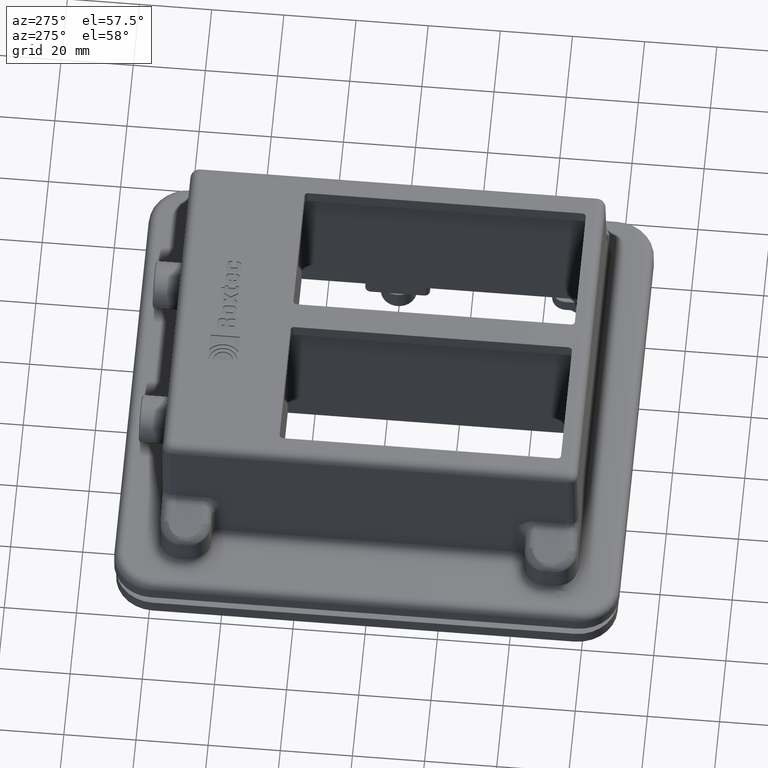
[diagram: clean part render]
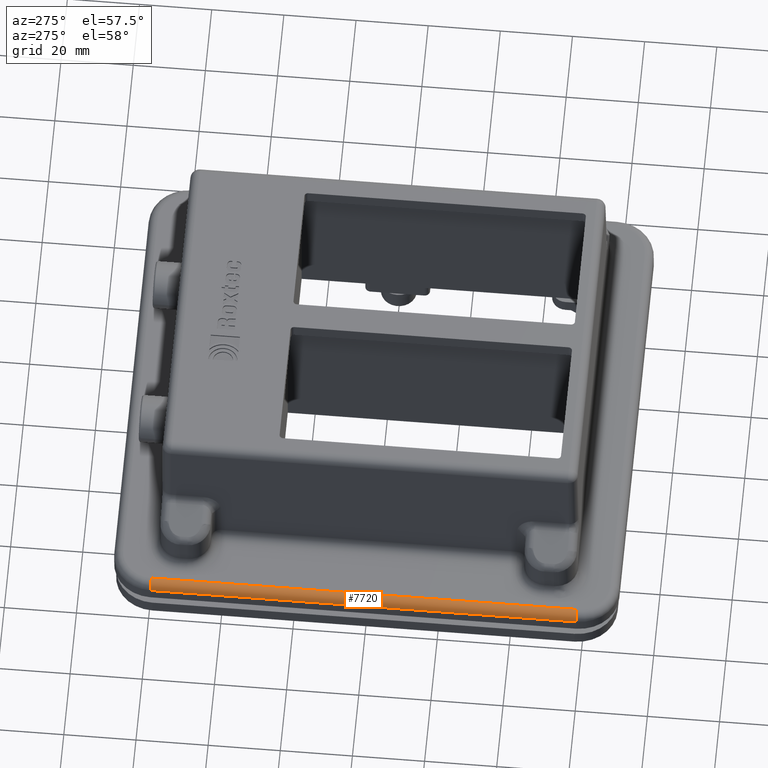
[diagram: same view with one face highlighted and labeled with its STEP entity id]
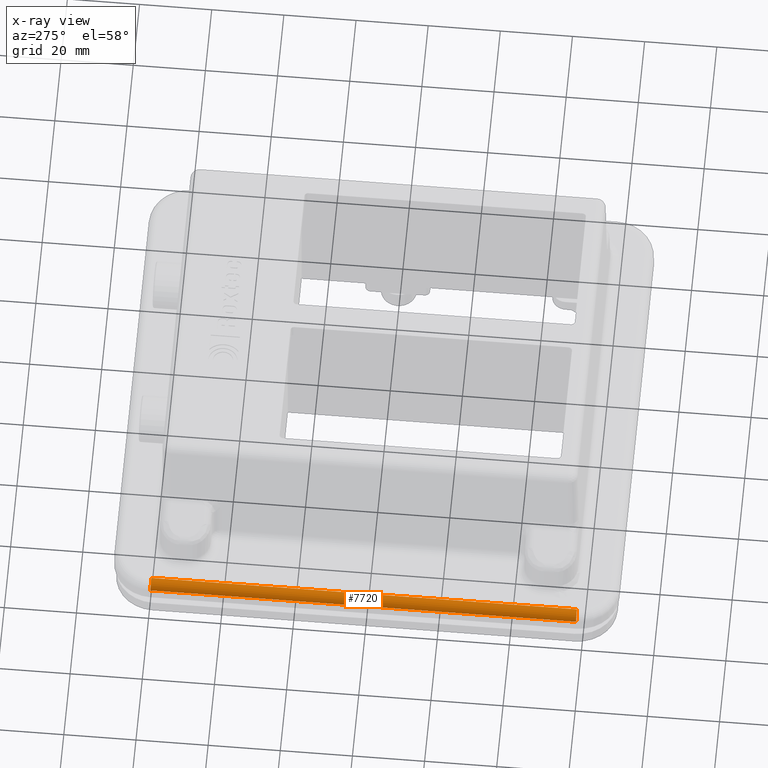
[diagram: x-ray of the same camera — body ghosted, the highlighted face saturated]
A machine part, auxiliary view. The second image highlights one B-rep face of the part: STEP entity #7720.
The next image is the same camera in x-ray: the body ghosted, the highlighted face saturated — about 0% of this face is hidden behind the body in this view.
In plain terms, the highlighted cylindrical surface (edge-blend (fillet) strip) has radius 2.5 mm, axis along (0, 1, 0).
Its self-contained STEP definition (entity closure, byte-faithful):
#226=CYLINDRICAL_SURFACE('',#8315,2.5);
#451=LINE('',#11556,#1095);
#470=LINE('',#11622,#1114);
#1095=VECTOR('',#9367,10.);
#1114=VECTOR('',#9440,10.);
#1905=FACE_OUTER_BOUND('',#2366,.T.);
#2366=EDGE_LOOP('',(#5414,#5415,#5416,#5417));
#2820=CIRCLE('',#8313,2.5);
#2822=CIRCLE('',#8316,2.5);
#3156=VERTEX_POINT('',#11534);
#3164=VERTEX_POINT('',#11555);
#3183=VERTEX_POINT('',#11616);
#3184=VERTEX_POINT('',#11620);
#3970=EDGE_CURVE('',#3164,#3156,#451,.T.);
#4001=EDGE_CURVE('',#3183,#3164,#2820,.T.);
#4003=EDGE_CURVE('',#3184,#3156,#2822,.T.);
#4004=EDGE_CURVE('',#3184,#3183,#470,.T.);
#5414=ORIENTED_EDGE('',*,*,#4001,.T.);
#5415=ORIENTED_EDGE('',*,*,#3970,.T.);
#5416=ORIENTED_EDGE('',*,*,#4003,.F.);
#5417=ORIENTED_EDGE('',*,*,#4004,.T.);
#7720=ADVANCED_FACE('',(#1905),#226,.T.);
#8313=AXIS2_PLACEMENT_3D('',#11617,#9432,#9433);
#8315=AXIS2_PLACEMENT_3D('',#11619,#9436,#9437);
#8316=AXIS2_PLACEMENT_3D('',#11621,#9438,#9439);
#9367=DIRECTION('',(-1.36642833800019E-16,-1.,-1.67339209039617E-32));
#9432=DIRECTION('center_axis',(0.,-1.,0.));
#9433=DIRECTION('ref_axis',(-1.22464679914735E-16,0.,1.));
#9436=DIRECTION('center_axis',(1.36642833800019E-16,1.,1.67339209039617E-32));
#9437=DIRECTION('ref_axis',(-0.707106781186548,9.66210743805398E-17,0.707106781186547));
#9438=DIRECTION('center_axis',(0.,-1.,0.));
#9439=DIRECTION('ref_axis',(-1.22464679914735E-16,0.,1.));
#9440=DIRECTION('',(1.36642833800019E-16,1.,1.67339209039617E-32));
#11534=CARTESIAN_POINT('',(-65.5,-59.,-39.5));
#11555=CARTESIAN_POINT('',(-65.5,59.,-39.5));
#11556=CARTESIAN_POINT('',(-65.5,-32.5,-39.5));
#11616=CARTESIAN_POINT('',(-63.,59.,-37.));
#11617=CARTESIAN_POINT('Origin',(-63.,59.,-39.5));
#11619=CARTESIAN_POINT('Origin',(-63.,-32.5,-39.5));
#11620=CARTESIAN_POINT('',(-63.,-59.,-37.));
#11621=CARTESIAN_POINT('Origin',(-63.,-59.,-39.5));
#11622=CARTESIAN_POINT('',(-63.,-32.5,-37.));